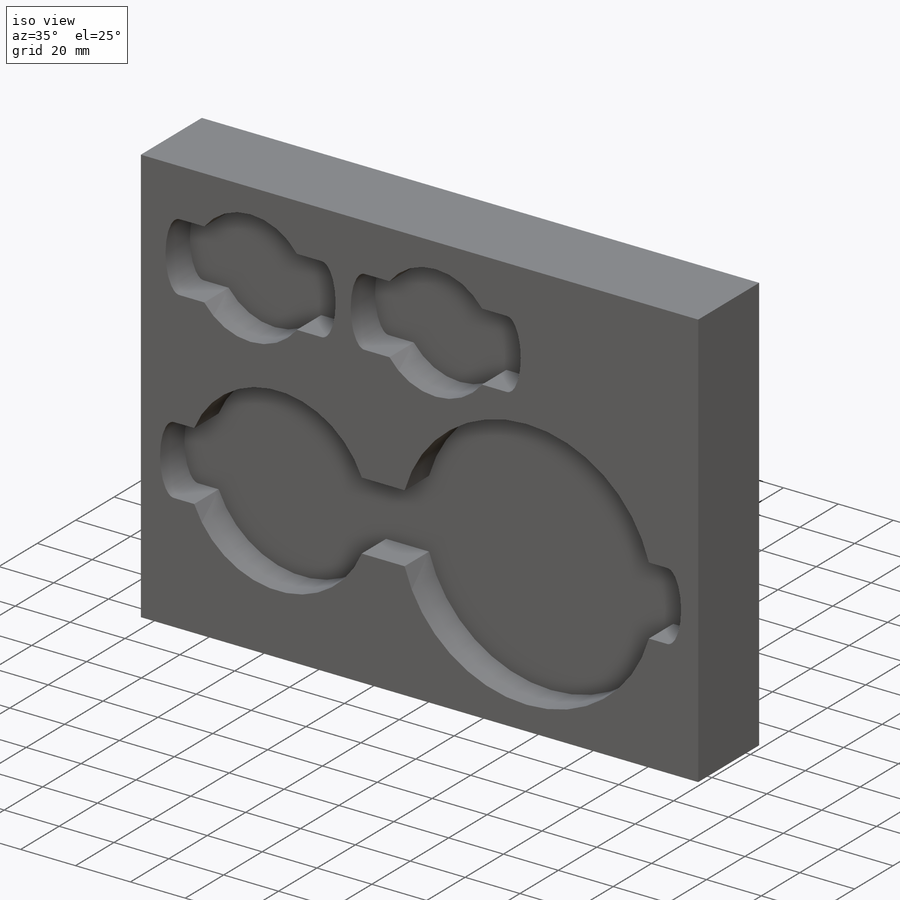
[diagram: iso view]
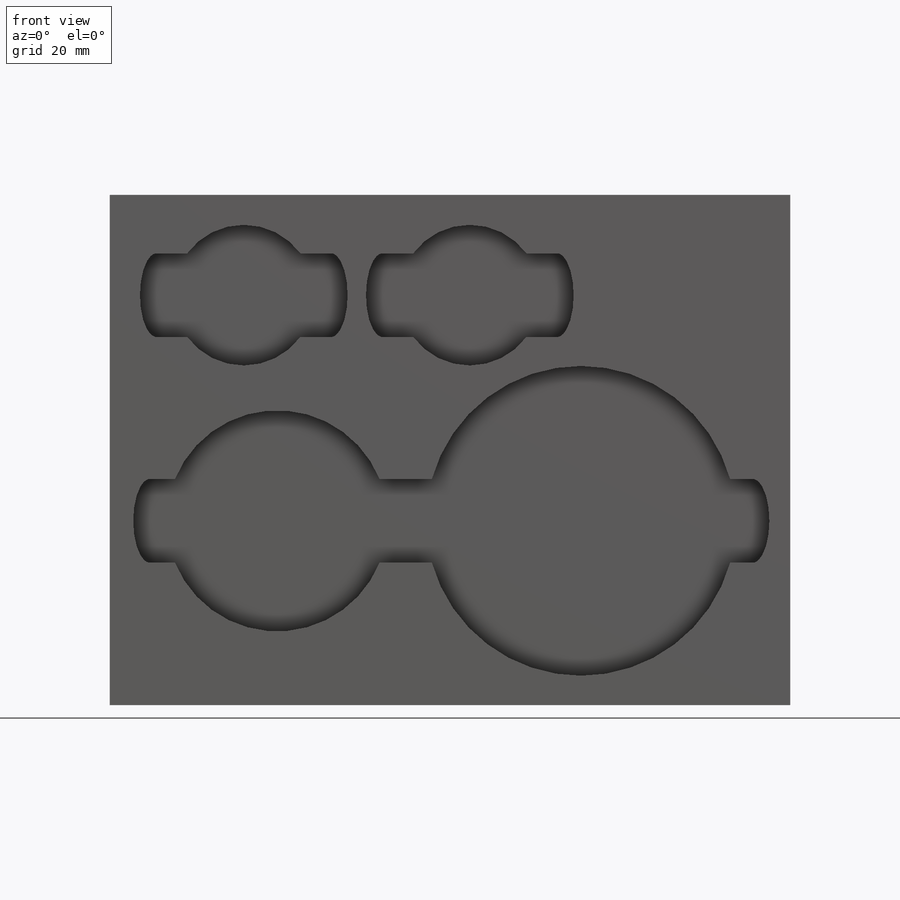
[diagram: front view]
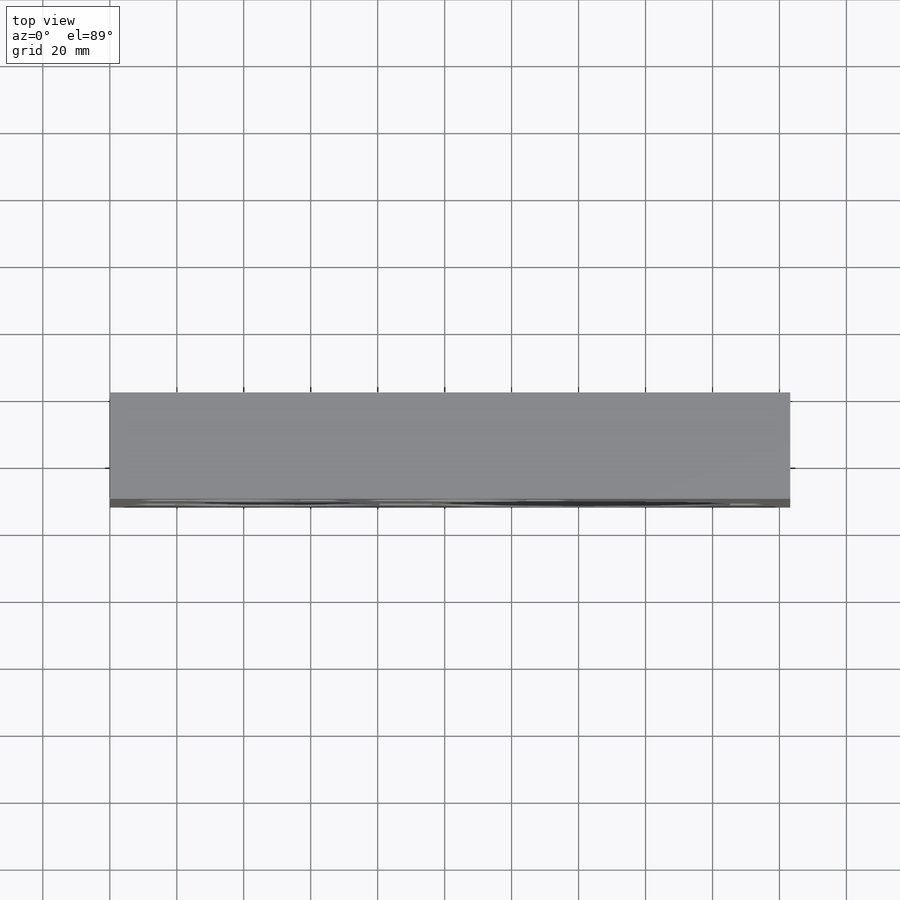
[diagram: top view]
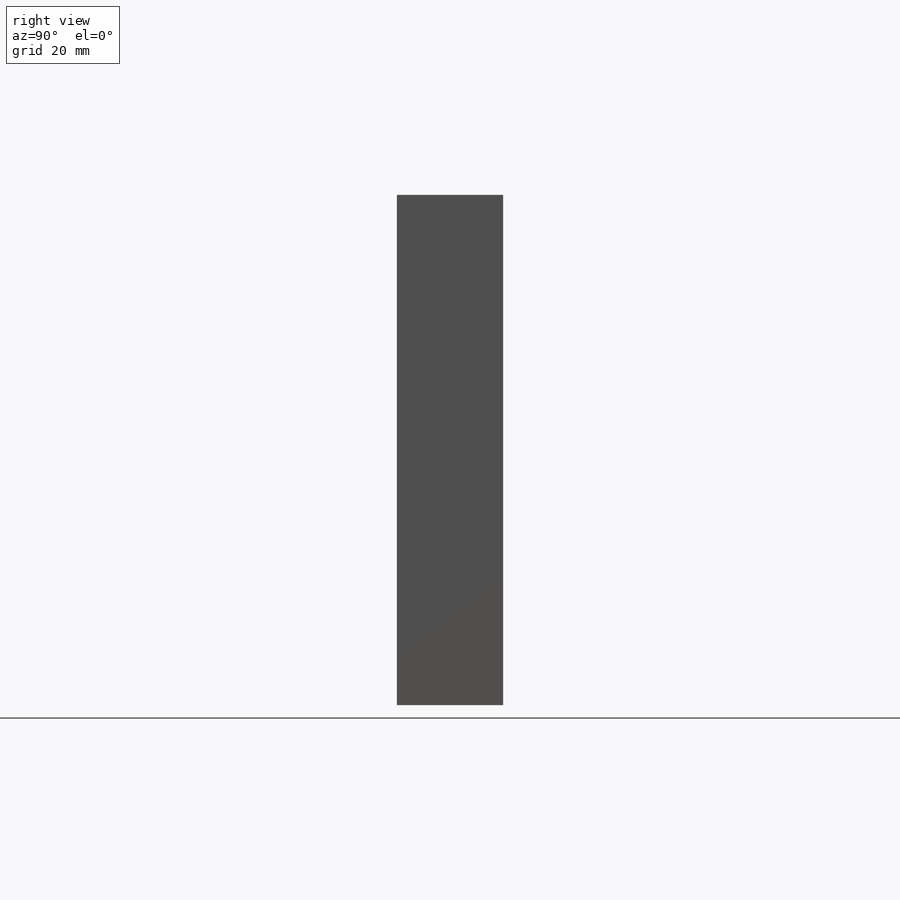
[diagram: right view]
SOLIDWORKS PART (.sldprt)
format: sldprt  version: not decoded by parser v0  size: 355,840 bytes
history: native  units: mm
features: sketch x5, extrude x3, cut_extrude x2, material x1 (+12 scaffold rows collapsed)
feature tree (23):
  scaffold x12  (default folders/planes/origin — collapsed)
  material  "Polyurethane Foam Rigid"
  sketch  "Sketch1"  dims[D1=152.4mm D2=203.2mm]
  extrude  "Boss-Extrude1"  Depth=25.4mm
  sketch  "Sketch2"
  extrude  "Boss-Extrude2"  Depth=6.35mm
  sketch  "Sketch3"  dims[c1.D1=66.0mm c1.D4=42.0mm c1.D5=92.5mm c2.D4=~47.906184mm c2.D2=55.0mm c2.D3=50.0mm c3.D4=101.6mm c3.D5=76.2mm c3.D6=55.0mm c3.D7=62.5mm c4.D6=55.0mm c4.D8=30.0mm c4.D9=67.5mm c4.D10=40.0mm]
  cut_extrude  "Gear-Slots"  Depth=12.7mm
  sketch  "Sketch4"  dims[c1.D1=32.5mm c1.D2=12.5mm c1.D3=32.5mm c1.D4=12.5mm c1.D5=32.5mm c1.D6=12.5mm c1.D7=32.5mm c1.D8=12.5mm c1.D9=32.5mm c1.D10=12.5mm c2.D1=22.5mm c2.D2=22.5mm c2.D3=22.5mm c2.D4=22.5mm c2.D5=22.5mm c2.D6=22.5mm c3.D3=22.5mm c3.D4=22.5mm c4.D3=22.5mm c4.D4=22.5mm c5.D3=22.5mm c5.D4=22.5mm c5.D1=25.0mm c5.D2=22.0mm c6.D3=5.0mm c6.D4=5.0mm c6.D2=30.0mm c7.D3=~5.257891mm c7.D2=60.0mm c8.D3=5.0mm c8.D4=~4.354986mm c9.D3=25.0mm c9.D4=60.0mm c10.D3=25.0mm c10.D4=60.0mm c10.D5=25.0mm c10.D6=60.0mm c10.D7=25.0mm c10.D8=60.0mm c10.D2=10.0mm c11.D3=10.0mm c11.D4=70.0mm c12.D3=25.0mm c12.D5=10.0mm c12.D6=70.0mm c13.D3=25.0mm c13.D5=10.0mm c13.D6=50.0mm c13.D7=25.0mm c13.D8=10.0mm c13.D9=100.0mm c13.D10=25.0mm c13.D11=10.0mm c13.D12=50.0mm]
  cut_extrude  "Finger-Slots"  Depth=12.7mm
  sketch  "Sketch6"  dims[D1=70.0mm]
  extrude  "Boss-Extrude3"  Depth=1mm
decode coverage: 9 of 10 modeling features carry decoded parameters
note: ~ marks probable driven/reference dimensions
note: suppression state not decoded; provenance and decode notes live in map.json
